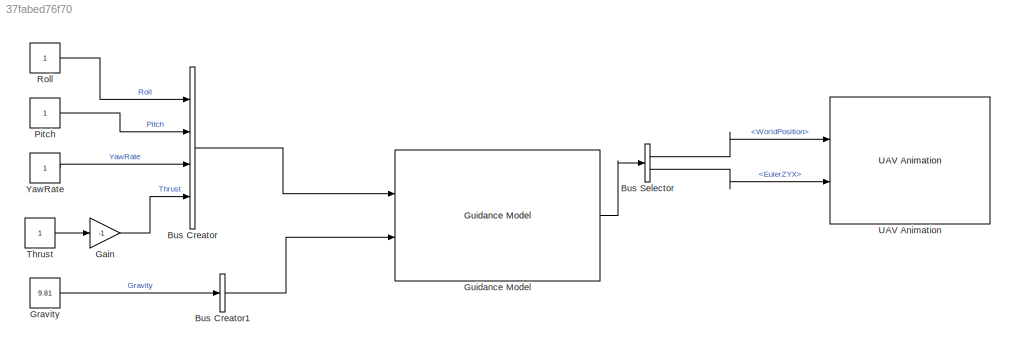
MODEL slx_37fabed76f70
KIND model
CONFIG AbsTol = auto
CONFIG EnableMultiTasking = off
CONFIG FixedStep = auto
CONFIG MaxStep = auto
CONFIG MinStep = auto
CONFIG RelTol = 1e-3
CONFIG SampleTimeConstraint = Unconstrained
CONFIG Solver = VariableStepAuto
CONFIG SolverName = VariableStepAuto
CONFIG StartTime = 0.0
CONFIG StopTime = 10.0
BLOCK [BusCreator] Bus Creator
  DisplayOption = bar
  InheritFromInputs = on
  Inputs = Roll,Pitch,YawRate,Thrust
  NonVirtualBus = on
  OutDataTypeStr = Bus: MultirotorGuidanceControlBus
  Ports = [4, 1]
BLOCK [BusCreator] Bus Creator1
  DisplayOption = bar
  InheritFromInputs = on
  Inputs = Gravity
  NonVirtualBus = on
  OutDataTypeStr = Bus: MultirotorGuidanceEnvironmentBus
  Ports = [1, 1]
BLOCK [BusSelector] Bus Selector
  OutputSignals = WorldPosition,EulerZYX
  Ports = [1, 2]
BLOCK [Gain] Gain
  Gain = -1
BLOCK [Constant] Gravity
  Value = 9.81
BLOCK [Reference] Guidance Model  REF=uavalgslib/Guidance Model
  Ports = [2, 1]
  SourceBlock = uavalgslib/Guidance Model
  SourceType = Guidance Model
BLOCK [Constant] Pitch
BLOCK [Constant] Roll
BLOCK [Constant] Thrust
BLOCK [Reference] UAV Animation  REF=uavutilslib/UAV Animation
  Ports = [2]
  SourceBlock = uavutilslib/UAV Animation
  SourceType = uav.sluav.internal.system.UAVAnimation
BLOCK [Constant] YawRate
LINE Bus Creator1:1 -> Guidance Model:2
LINE Bus Creator:1 -> Guidance Model:1
LINE Bus Selector:1 -> UAV Animation:1
LINE Bus Selector:2 -> UAV Animation:2
LINE Gain:1 -> Bus Creator:4
LINE Gravity:1 -> Bus Creator1:1
LINE Guidance Model:1 -> Bus Selector:1
LINE Pitch:1 -> Bus Creator:2
LINE Roll:1 -> Bus Creator:1
LINE Thrust:1 -> Gain:1
LINE YawRate:1 -> Bus Creator:3
